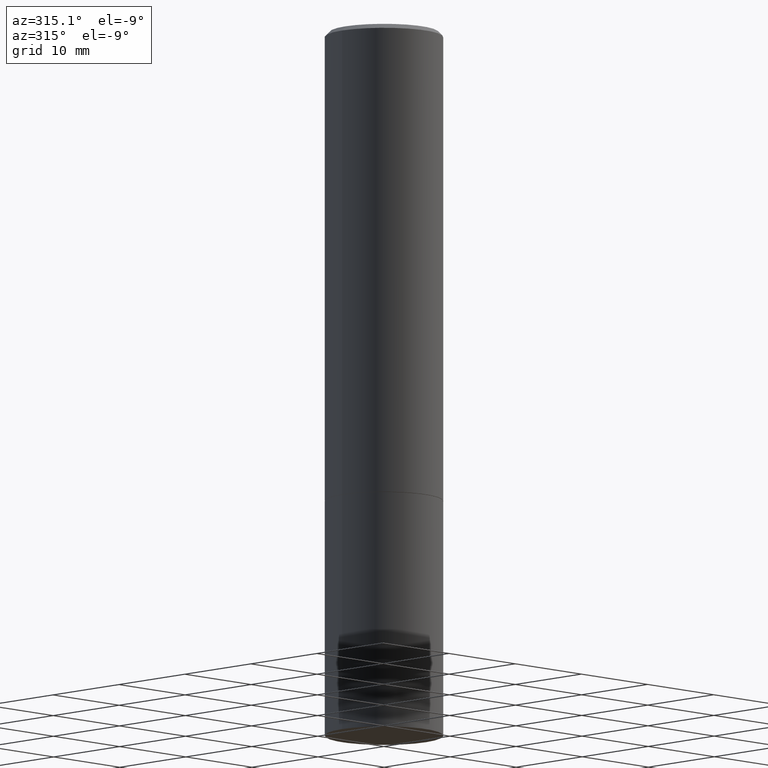
[diagram: clean part render]
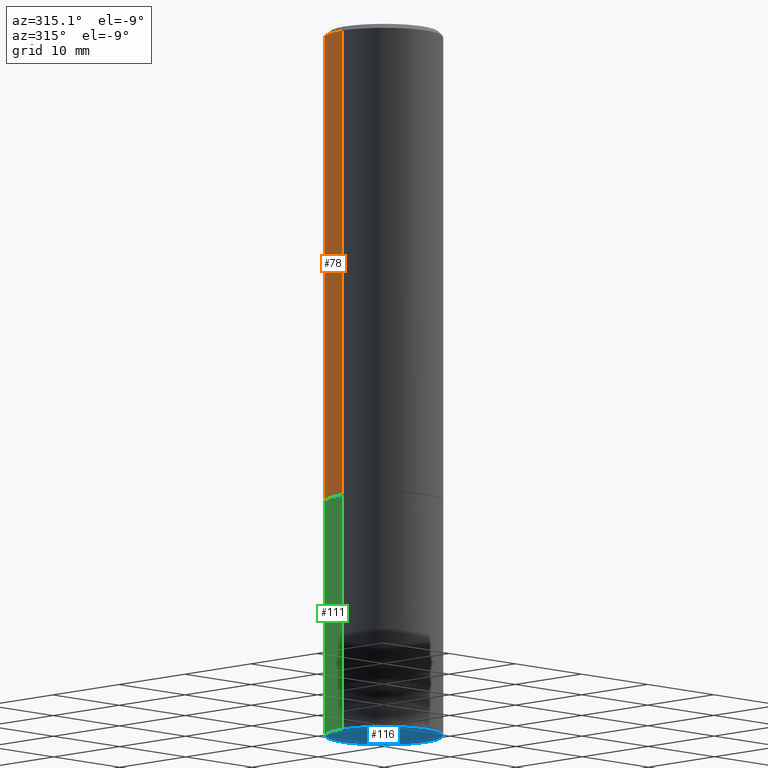
[diagram: same view with three faces highlighted in distinct colors, each labeled with its STEP entity id]
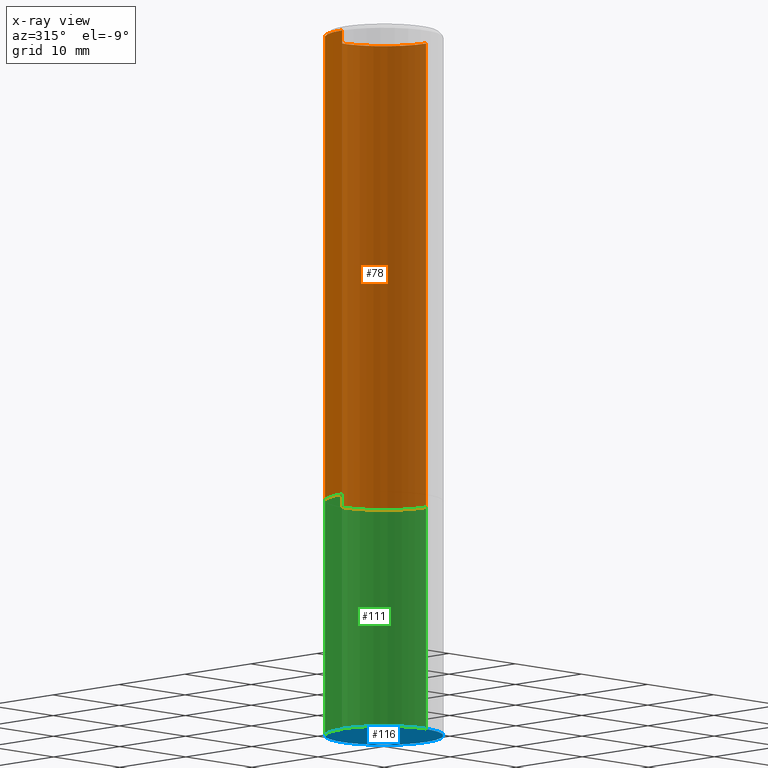
[diagram: x-ray of the same camera — body ghosted, the three highlighted faces saturated]
A machine part, auxiliary view with three faces highlighted in distinct colors.
The next image is the same camera in x-ray (body ghosted, the three faces saturated) — at least one of them is partly hidden behind the body in this view.
Their STEP definitions:

[orange] entity #78 — the highlighted cylindrical surface (partial cylindrical patch) has radius 6.35 mm, axis along (-0, 0, 1).
#10 = CARTESIAN_POINT ( 'NONE',  ( 4.890937612370296805E-31, -6.982962677686323656E-17, -0.02000000000000009409 ) ) ;
#14 = CARTESIAN_POINT ( 'NONE',  ( 4.888492143564088712E-29, -6.979471196347448158E-15, -1.999000000000000110 ) ) ;
#19 = ORIENTED_EDGE ( 'NONE', *, *, #255, .T. ) ;
#20 = VECTOR ( 'NONE', #106, 39.37007874015748143 ) ;
#22 = VERTEX_POINT ( 'NONE', #248 ) ;
#25 = CARTESIAN_POINT ( 'NONE',  ( 0.2500000000000000000, -8.725211865769015625E-15, -1.999000000000000110 ) ) ;
#36 = DIRECTION ( 'NONE',  ( -2.445468806185136877E-29, 3.491481338843145188E-15, 1.000000000000000000 ) ) ;
#41 = CARTESIAN_POINT ( 'NONE',  ( 0.000000000000000000, 0.000000000000000000, 0.000000000000000000 ) ) ;
#61 = EDGE_CURVE ( 'NONE', #151, #127, #147, .T. ) ;
#63 = DIRECTION ( 'NONE',  ( 1.000000000000000000, -6.982962677686267499E-15, 0.000000000000000000 ) ) ;
#78 = ADVANCED_FACE ( 'NONE', ( #170 ), #234, .T. ) ;
#98 = ORIENTED_EDGE ( 'NONE', *, *, #61, .F. ) ;
#106 = DIRECTION ( 'NONE',  ( -2.445468806185136877E-29, 3.491481338843145188E-15, 1.000000000000000000 ) ) ;
#120 = DIRECTION ( 'NONE',  ( 1.000000000000000000, -6.982962677686266711E-15, 4.876176775795935793E-29 ) ) ;
#125 = ORIENTED_EDGE ( 'NONE', *, *, #251, .F. ) ;
#127 = VERTEX_POINT ( 'NONE', #258 ) ;
#144 = CIRCLE ( 'NONE', #365, 0.2500000000000000000 ) ;
#147 = LINE ( 'NONE', #177, #208 ) ;
#151 = VERTEX_POINT ( 'NONE', #25 ) ;
#170 = FACE_OUTER_BOUND ( 'NONE', #235, .T. ) ;
#177 = CARTESIAN_POINT ( 'NONE',  ( 0.2499999999999998057, -1.745740669421565297E-15, 1.219044193948982967E-29 ) ) ;
#206 = CARTESIAN_POINT ( 'NONE',  ( -0.2499999999999996114, 1.675911042644700618E-15, -0.02000000000000009409 ) ) ;
#208 = VECTOR ( 'NONE', #36, 39.37007874015748143 ) ;
#212 = ORIENTED_EDGE ( 'NONE', *, *, #321, .T. ) ;
#223 = LINE ( 'NONE', #343, #20 ) ;
#228 = CIRCLE ( 'NONE', #284, 0.2499999999999996114 ) ;
#234 = CYLINDRICAL_SURFACE ( 'NONE', #261, 0.2499999999999998057 ) ;
#235 = EDGE_LOOP ( 'NONE', ( #19, #212, #125, #98 ) ) ;
#237 = DIRECTION ( 'NONE',  ( -2.445468806185136597E-29, 3.491481338843145583E-15, 1.000000000000000000 ) ) ;
#243 = VERTEX_POINT ( 'NONE', #206 ) ;
#248 = CARTESIAN_POINT ( 'NONE',  ( -0.2500000000000000555, -1.748293572161902502E-15, -1.999000000000000110 ) ) ;
#251 = EDGE_CURVE ( 'NONE', #127, #243, #228, .T. ) ;
#255 = EDGE_CURVE ( 'NONE', #151, #22, #144, .T. ) ;
#258 = CARTESIAN_POINT ( 'NONE',  ( 0.2499999999999996114, -1.784954126219743428E-15, -0.02000000000000009409 ) ) ;
#261 = AXIS2_PLACEMENT_3D ( 'NONE', #41, #346, #120 ) ;
#284 = AXIS2_PLACEMENT_3D ( 'NONE', #10, #237, #63 ) ;
#321 = EDGE_CURVE ( 'NONE', #22, #243, #223, .T. ) ;
#332 = DIRECTION ( 'NONE',  ( 1.000000000000000000, -6.982962677686266711E-15, 0.000000000000000000 ) ) ;
#343 = CARTESIAN_POINT ( 'NONE',  ( -0.2499999999999998057, 1.776356839400249084E-15, -1.229733772563725465E-29 ) ) ;
#346 = DIRECTION ( 'NONE',  ( -2.445468806185136597E-29, 3.491481338843145583E-15, 1.000000000000000000 ) ) ;
#350 = DIRECTION ( 'NONE',  ( -2.445468806185136597E-29, 3.491481338843145583E-15, 1.000000000000000000 ) ) ;
#365 = AXIS2_PLACEMENT_3D ( 'NONE', #14, #350, #332 ) ;

[blue] entity #116 — the highlighted planar face has unit normal (0, -0, -1).
#9 = AXIS2_PLACEMENT_3D ( 'NONE', #219, #335, #73 ) ;
#12 = VERTEX_POINT ( 'NONE', #76 ) ;
#24 = EDGE_CURVE ( 'NONE', #149, #12, #227, .T. ) ;
#28 = DIRECTION ( 'NONE',  ( 1.000000000000000000, -6.982962677686262766E-15, 0.000000000000000000 ) ) ;
#64 = AXIS2_PLACEMENT_3D ( 'NONE', #215, #72, #28 ) ;
#72 = DIRECTION ( 'NONE',  ( -2.445468806185136597E-29, 3.491481338843145583E-15, 1.000000000000000000 ) ) ;
#73 = DIRECTION ( 'NONE',  ( -1.000000000000000000, 6.982962677686265922E-15, -4.876176775795935793E-29 ) ) ;
#76 = CARTESIAN_POINT ( 'NONE',  ( 0.2500000000000000000, -1.222018468595100303E-14, -3.000000000000000444 ) ) ;
#87 = CIRCLE ( 'NONE', #168, 0.2500000000000000000 ) ;
#89 = CARTESIAN_POINT ( 'NONE',  ( 7.336406418555409790E-29, -1.047444401652943635E-14, -3.000000000000000444 ) ) ;
#103 = PLANE ( 'NONE',  #9 ) ;
#116 = ADVANCED_FACE ( 'NONE', ( #182 ), #103, .T. ) ;
#149 = VERTEX_POINT ( 'NONE', #192 ) ;
#159 = EDGE_CURVE ( 'NONE', #12, #149, #87, .T. ) ;
#168 = AXIS2_PLACEMENT_3D ( 'NONE', #89, #171, #265 ) ;
#171 = DIRECTION ( 'NONE',  ( -2.445468806185136597E-29, 3.491481338843145583E-15, 1.000000000000000000 ) ) ;
#182 = FACE_OUTER_BOUND ( 'NONE', #301, .T. ) ;
#192 = CARTESIAN_POINT ( 'NONE',  ( -0.2500000000000000000, -6.952346507707613689E-15, -3.000000000000000444 ) ) ;
#205 = ORIENTED_EDGE ( 'NONE', *, *, #24, .F. ) ;
#215 = CARTESIAN_POINT ( 'NONE',  ( 7.336406418555409790E-29, -1.047444401652943635E-14, -3.000000000000000444 ) ) ;
#219 = CARTESIAN_POINT ( 'NONE',  ( 1.745740669421639647E-15, 0.2499999999999895084, -3.000000000000001332 ) ) ;
#227 = CIRCLE ( 'NONE', #64, 0.2500000000000000000 ) ;
#265 = DIRECTION ( 'NONE',  ( 1.000000000000000000, -6.982962677686262766E-15, 0.000000000000000000 ) ) ;
#301 = EDGE_LOOP ( 'NONE', ( #353, #205 ) ) ;
#335 = DIRECTION ( 'NONE',  ( 2.438088387897960049E-29, -3.491481338843145188E-15, -1.000000000000000000 ) ) ;
#353 = ORIENTED_EDGE ( 'NONE', *, *, #159, .F. ) ;

[green] entity #111 — the highlighted cylindrical surface (partial cylindrical patch) has radius 6.35 mm, axis along (-0, 0, 1).
#12 = VERTEX_POINT ( 'NONE', #76 ) ;
#27 = LINE ( 'NONE', #339, #136 ) ;
#38 = VECTOR ( 'NONE', #344, 39.37007874015748143 ) ;
#76 = CARTESIAN_POINT ( 'NONE',  ( 0.2500000000000000000, -1.222018468595100303E-14, -3.000000000000000444 ) ) ;
#81 = EDGE_CURVE ( 'NONE', #175, #277, #135, .T. ) ;
#82 = DIRECTION ( 'NONE',  ( -2.445468806185136597E-29, 3.491481338843145583E-15, 1.000000000000000000 ) ) ;
#87 = CIRCLE ( 'NONE', #168, 0.2500000000000000000 ) ;
#89 = CARTESIAN_POINT ( 'NONE',  ( 7.336406418555409790E-29, -1.047444401652943635E-14, -3.000000000000000444 ) ) ;
#90 = ORIENTED_EDGE ( 'NONE', *, *, #295, .T. ) ;
#111 = ADVANCED_FACE ( 'NONE', ( #359 ), #281, .T. ) ;
#114 = AXIS2_PLACEMENT_3D ( 'NONE', #224, #82, #137 ) ;
#135 = CIRCLE ( 'NONE', #354, 0.2500000000000000000 ) ;
#136 = VECTOR ( 'NONE', #252, 39.37007874015748143 ) ;
#137 = DIRECTION ( 'NONE',  ( 1.000000000000000000, -6.982962677686266711E-15, 4.876176775795935793E-29 ) ) ;
#149 = VERTEX_POINT ( 'NONE', #192 ) ;
#150 = DIRECTION ( 'NONE',  ( -2.445468806185136597E-29, 3.491481338843145583E-15, 1.000000000000000000 ) ) ;
#159 = EDGE_CURVE ( 'NONE', #12, #149, #87, .T. ) ;
#168 = AXIS2_PLACEMENT_3D ( 'NONE', #89, #171, #265 ) ;
#171 = DIRECTION ( 'NONE',  ( -2.445468806185136597E-29, 3.491481338843145583E-15, 1.000000000000000000 ) ) ;
#175 = VERTEX_POINT ( 'NONE', #266 ) ;
#181 = EDGE_CURVE ( 'NONE', #12, #175, #264, .T. ) ;
#192 = CARTESIAN_POINT ( 'NONE',  ( -0.2500000000000000000, -6.952346507707613689E-15, -3.000000000000000444 ) ) ;
#201 = CARTESIAN_POINT ( 'NONE',  ( 0.2500000000000000000, -1.745740669421566678E-15, 1.219044193948983948E-29 ) ) ;
#202 = EDGE_LOOP ( 'NONE', ( #366, #90, #347, #211 ) ) ;
#211 = ORIENTED_EDGE ( 'NONE', *, *, #181, .F. ) ;
#224 = CARTESIAN_POINT ( 'NONE',  ( 0.000000000000000000, 0.000000000000000000, 0.000000000000000000 ) ) ;
#238 = CARTESIAN_POINT ( 'NONE',  ( 4.890937612370273754E-29, -6.982962677686291954E-15, -2.000000000000000444 ) ) ;
#244 = CARTESIAN_POINT ( 'NONE',  ( -0.2500000000000000000, -6.952346507707613689E-15, -2.000000000000000444 ) ) ;
#252 = DIRECTION ( 'NONE',  ( -2.445468806185136877E-29, 3.491481338843145188E-15, 1.000000000000000000 ) ) ;
#264 = LINE ( 'NONE', #201, #38 ) ;
#265 = DIRECTION ( 'NONE',  ( 1.000000000000000000, -6.982962677686262766E-15, 0.000000000000000000 ) ) ;
#266 = CARTESIAN_POINT ( 'NONE',  ( 0.2500000000000000000, -8.728703347107858632E-15, -2.000000000000000444 ) ) ;
#277 = VERTEX_POINT ( 'NONE', #244 ) ;
#281 = CYLINDRICAL_SURFACE ( 'NONE', #114, 0.2500000000000000000 ) ;
#289 = DIRECTION ( 'NONE',  ( 1.000000000000000000, -6.982962677686266711E-15, 0.000000000000000000 ) ) ;
#295 = EDGE_CURVE ( 'NONE', #149, #277, #27, .T. ) ;
#339 = CARTESIAN_POINT ( 'NONE',  ( -0.2500000000000000000, 1.776356839400250465E-15, -1.229733772563726445E-29 ) ) ;
#344 = DIRECTION ( 'NONE',  ( -2.445468806185136877E-29, 3.491481338843145188E-15, 1.000000000000000000 ) ) ;
#347 = ORIENTED_EDGE ( 'NONE', *, *, #81, .F. ) ;
#354 = AXIS2_PLACEMENT_3D ( 'NONE', #238, #150, #289 ) ;
#359 = FACE_OUTER_BOUND ( 'NONE', #202, .T. ) ;
#366 = ORIENTED_EDGE ( 'NONE', *, *, #159, .T. ) ;